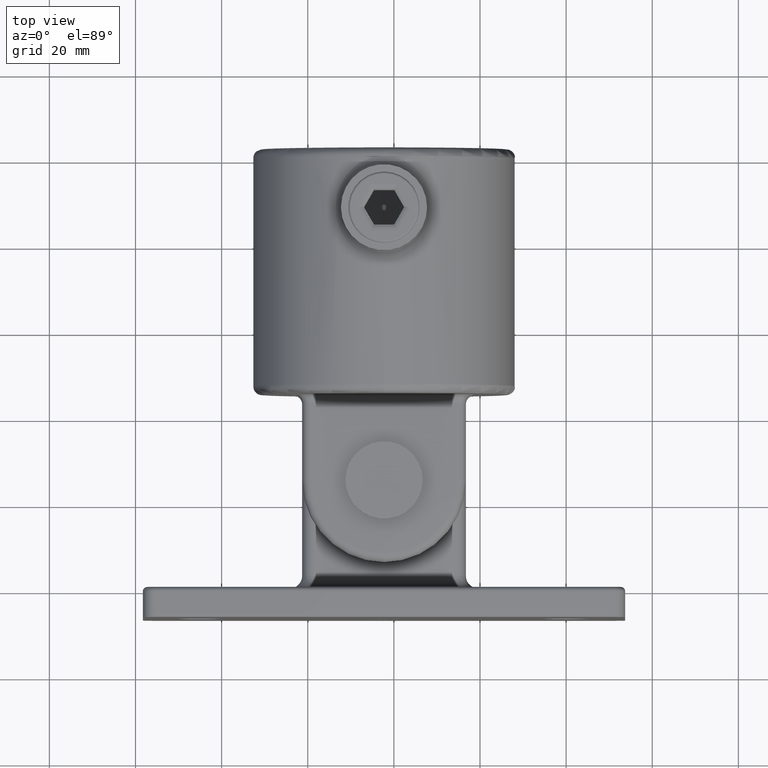
[diagram: clean part render]
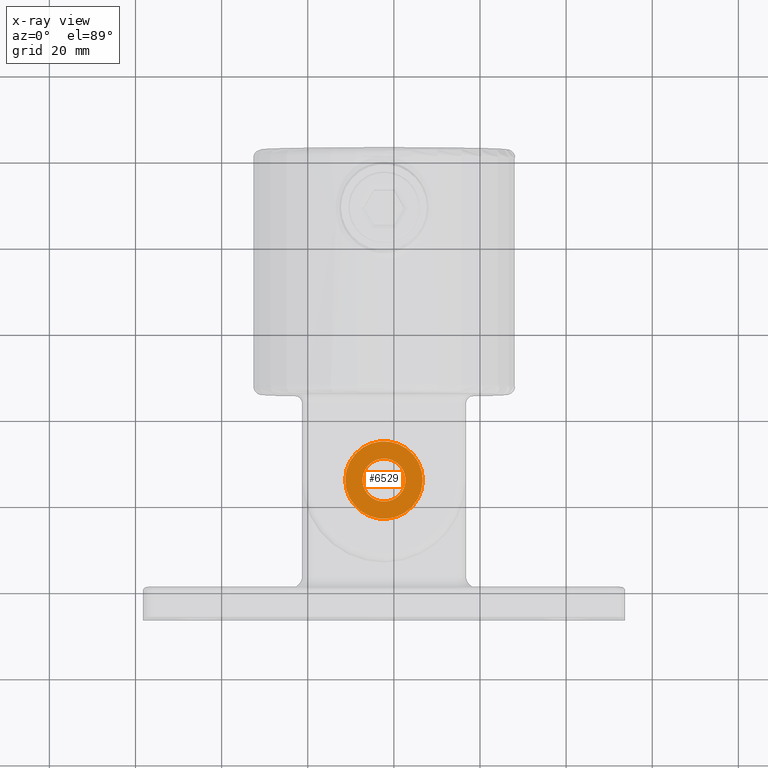
[diagram: x-ray — body ghosted, one internal face saturated and labeled with its STEP entity id]
A machine part, top view, then the same camera in x-ray: the body is ghosted and one INTERNAL B-rep face — a face not visible from any outside direction — is saturated and labeled: STEP entity #6529.
In plain terms, the highlighted planar face has unit normal (-0, 0, 1).
Its self-contained STEP definition (entity closure, byte-faithful):
#136 = ORIENTED_EDGE ( 'NONE', *, *, #738, .T. ) ;
#738 = EDGE_CURVE ( 'NONE', #8514, #8514, #6290, .T. ) ;
#819 = AXIS2_PLACEMENT_3D ( 'NONE', #17001, #15602, #13164 ) ;
#890 = DIRECTION ( 'NONE',  ( 0.000000000000000000, -0.000000000000000000, -1.000000000000000000 ) ) ;
#1432 = CARTESIAN_POINT ( 'NONE',  ( 0.000000000000000000, 0.000000000000000000, 0.000000000000000000 ) ) ;
#1760 = AXIS2_PLACEMENT_3D ( 'NONE', #1432, #10836, #5555 ) ;
#3457 = ORIENTED_EDGE ( 'NONE', *, *, #13774, .F. ) ;
#3482 = DIRECTION ( 'NONE',  ( 0.000000000000000000, -1.000000000000000000, 0.000000000000000000 ) ) ;
#4129 = AXIS2_PLACEMENT_3D ( 'NONE', #8985, #3482, #890 ) ;
#5099 = PLANE ( 'NONE',  #4129 ) ;
#5386 = VERTEX_POINT ( 'NONE', #8414 ) ;
#5555 = DIRECTION ( 'NONE',  ( 0.000000000000000000, 0.000000000000000000, -1.000000000000000000 ) ) ;
#6290 = CIRCLE ( 'NONE', #819, 5.000000000000000888 ) ;
#6529 = ADVANCED_FACE ( 'NONE', ( #9925, #17232 ), #5099, .F. ) ;
#6949 = CARTESIAN_POINT ( 'NONE',  ( 0.000000000000000000, 0.000000000000000000, -5.000000000000000888 ) ) ;
#7895 = EDGE_LOOP ( 'NONE', ( #136 ) ) ;
#8414 = CARTESIAN_POINT ( 'NONE',  ( 0.000000000000000000, 0.000000000000000000, -9.000000000000000000 ) ) ;
#8514 = VERTEX_POINT ( 'NONE', #6949 ) ;
#8985 = CARTESIAN_POINT ( 'NONE',  ( 0.000000000000000000, 0.000000000000000000, 0.000000000000000000 ) ) ;
#9925 = FACE_BOUND ( 'NONE', #7895, .T. ) ;
#10752 = EDGE_LOOP ( 'NONE', ( #3457 ) ) ;
#10836 = DIRECTION ( 'NONE',  ( 0.000000000000000000, -1.000000000000000000, 0.000000000000000000 ) ) ;
#13164 = DIRECTION ( 'NONE',  ( 0.000000000000000000, 0.000000000000000000, -1.000000000000000000 ) ) ;
#13182 = CIRCLE ( 'NONE', #1760, 9.000000000000000000 ) ;
#13774 = EDGE_CURVE ( 'NONE', #5386, #5386, #13182, .T. ) ;
#15602 = DIRECTION ( 'NONE',  ( 0.000000000000000000, -1.000000000000000000, 0.000000000000000000 ) ) ;
#17001 = CARTESIAN_POINT ( 'NONE',  ( 0.000000000000000000, 0.000000000000000000, 0.000000000000000000 ) ) ;
#17232 = FACE_OUTER_BOUND ( 'NONE', #10752, .T. ) ;